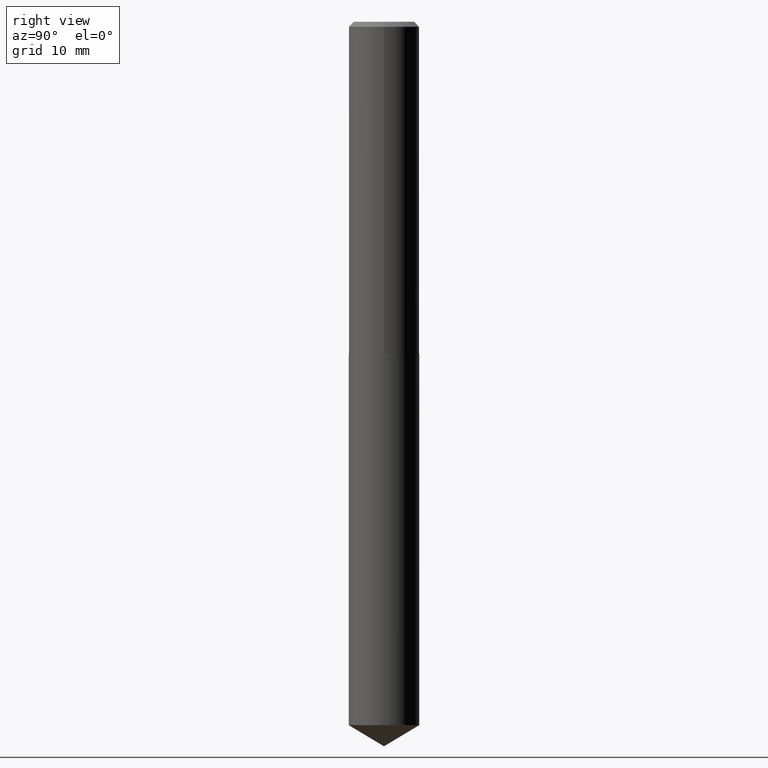
[diagram: clean part render]
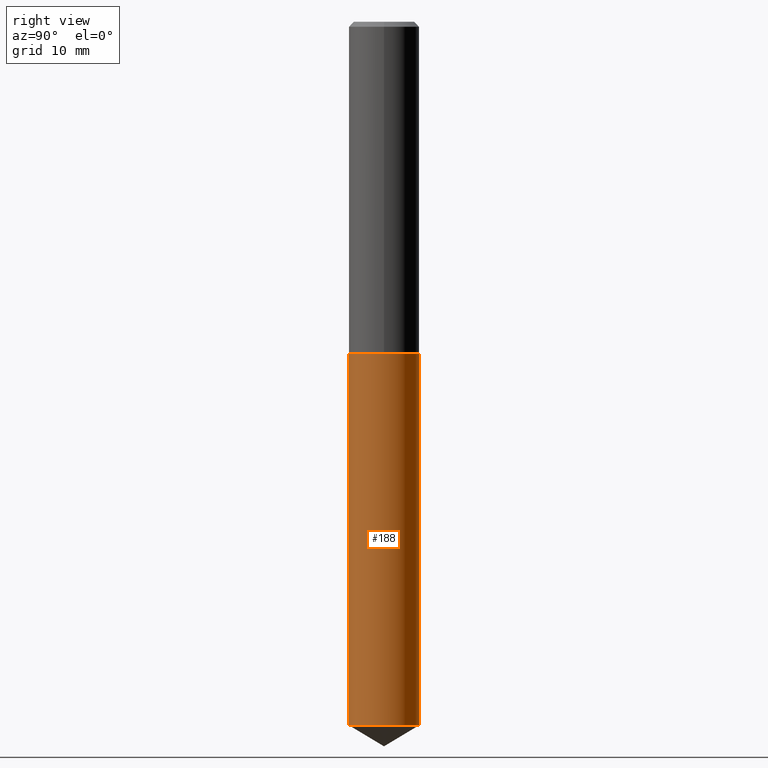
[diagram: same view with one face highlighted and labeled with its STEP entity id]
A machine part, right view. The second image highlights one B-rep face of the part: STEP entity #188.
In plain terms, the highlighted cylindrical surface (edge-blend (fillet) strip) has radius 5.5562 mm, axis along (-0, 0, 1).
Its self-contained STEP definition (entity closure, byte-faithful):
#19 = EDGE_LOOP ( 'NONE', ( #231, #193, #320, #311 ) ) ;
#33 = AXIS2_PLACEMENT_3D ( 'NONE', #154, #247, #273 ) ;
#41 = VERTEX_POINT ( 'NONE', #236 ) ;
#43 = LINE ( 'NONE', #136, #346 ) ;
#93 = FACE_OUTER_BOUND ( 'NONE', #19, .T. ) ;
#94 = CARTESIAN_POINT ( 'NONE',  ( -1.527523085743763952E-15, -0.2187500000000152656, -4.368561739587721426 ) ) ;
#100 = CARTESIAN_POINT ( 'NONE',  ( -1.527523085743819961E-15, -0.2187500000000071887, -2.062499999999999556 ) ) ;
#109 = VERTEX_POINT ( 'NONE', #94 ) ;
#124 = AXIS2_PLACEMENT_3D ( 'NONE', #335, #159, #303 ) ;
#131 = CARTESIAN_POINT ( 'NONE',  ( 1.554312234475269249E-15, 0.2187499999999927836, -2.062500000000000888 ) ) ;
#133 = CIRCLE ( 'NONE', #265, 0.2187500000000000000 ) ;
#134 = CARTESIAN_POINT ( 'NONE',  ( 1.554312234475325850E-15, 0.2187499999999847622, -4.368561739587722315 ) ) ;
#136 = CARTESIAN_POINT ( 'NONE',  ( -1.527523085743819961E-15, -0.2187500000000071887, -2.062499999999999556 ) ) ;
#154 = CARTESIAN_POINT ( 'NONE',  ( 5.043779412756844791E-29, -7.201180261363988578E-15, -2.062500000000000000 ) ) ;
#159 = DIRECTION ( 'NONE',  ( -2.445407909146511426E-29, 3.491568546868500989E-15, 1.000000000000000000 ) ) ;
#177 = VECTOR ( 'NONE', #367, 39.37007874015748143 ) ;
#179 = EDGE_CURVE ( 'NONE', #109, #299, #133, .T. ) ;
#185 = DIRECTION ( 'NONE',  ( -2.445407909146511426E-29, 3.491568546868500989E-15, 1.000000000000000000 ) ) ;
#188 = ADVANCED_FACE ( 'NONE', ( #93 ), #363, .T. ) ;
#192 = EDGE_CURVE ( 'NONE', #299, #41, #245, .T. ) ;
#193 = ORIENTED_EDGE ( 'NONE', *, *, #192, .T. ) ;
#196 = DIRECTION ( 'NONE',  ( -2.445407909146511426E-29, 3.491568546868500989E-15, 1.000000000000000000 ) ) ;
#208 = EDGE_CURVE ( 'NONE', #344, #41, #377, .T. ) ;
#215 = DIRECTION ( 'NONE',  ( -6.982962677686265133E-15, -1.000000000000000000, 2.497689594207326371E-15 ) ) ;
#231 = ORIENTED_EDGE ( 'NONE', *, *, #179, .T. ) ;
#236 = CARTESIAN_POINT ( 'NONE',  ( 1.554312234475326047E-15, 0.2187499999999927836, -2.062500000000000888 ) ) ;
#245 = LINE ( 'NONE', #131, #177 ) ;
#247 = DIRECTION ( 'NONE',  ( -2.445407909146511426E-29, 3.491568546868500989E-15, 1.000000000000000000 ) ) ;
#265 = AXIS2_PLACEMENT_3D ( 'NONE', #304, #185, #215 ) ;
#273 = DIRECTION ( 'NONE',  ( -6.982962677686265133E-15, -1.000000000000000000, 3.746534391310989557E-15 ) ) ;
#299 = VERTEX_POINT ( 'NONE', #134 ) ;
#303 = DIRECTION ( 'NONE',  ( -6.982962677686265133E-15, -1.000000000000000000, 3.746534391310989557E-15 ) ) ;
#304 = CARTESIAN_POINT ( 'NONE',  ( 1.068304102972482118E-28, -1.525295289844533477E-14, -4.368561739587721426 ) ) ;
#311 = ORIENTED_EDGE ( 'NONE', *, *, #354, .F. ) ;
#320 = ORIENTED_EDGE ( 'NONE', *, *, #208, .F. ) ;
#335 = CARTESIAN_POINT ( 'NONE',  ( 5.043779412756844791E-29, -7.201180261363988578E-15, -2.062500000000000000 ) ) ;
#344 = VERTEX_POINT ( 'NONE', #100 ) ;
#346 = VECTOR ( 'NONE', #196, 39.37007874015748143 ) ;
#354 = EDGE_CURVE ( 'NONE', #109, #344, #43, .T. ) ;
#363 = CYLINDRICAL_SURFACE ( 'NONE', #124, 0.2187500000000000000 ) ;
#367 = DIRECTION ( 'NONE',  ( -2.445407909146511426E-29, 3.491568546868500989E-15, 1.000000000000000000 ) ) ;
#377 = CIRCLE ( 'NONE', #33, 0.2187500000000000000 ) ;